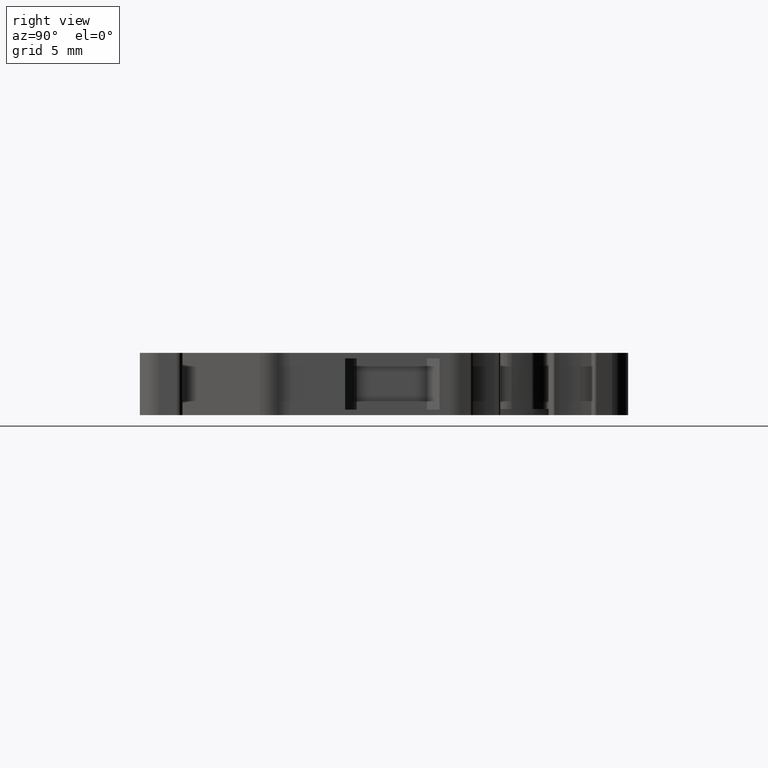
[diagram: clean part render]
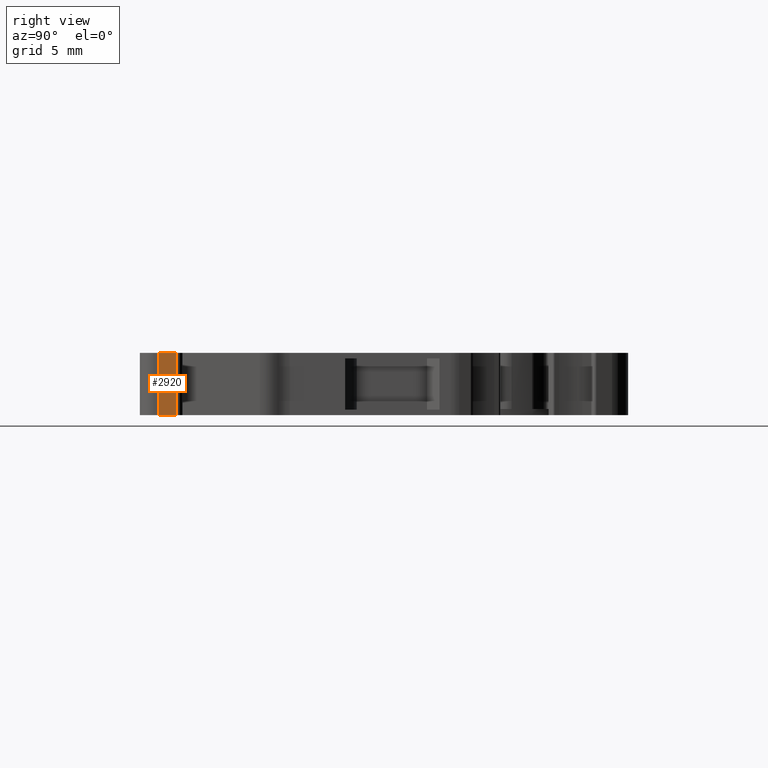
[diagram: same view with one face highlighted and labeled with its STEP entity id]
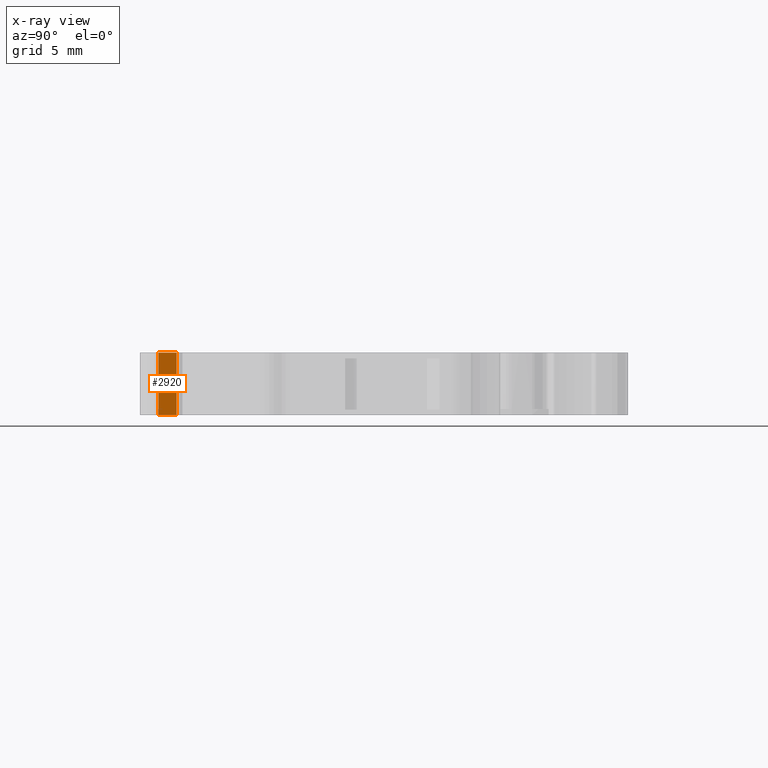
[diagram: x-ray of the same camera — body ghosted, the highlighted face saturated]
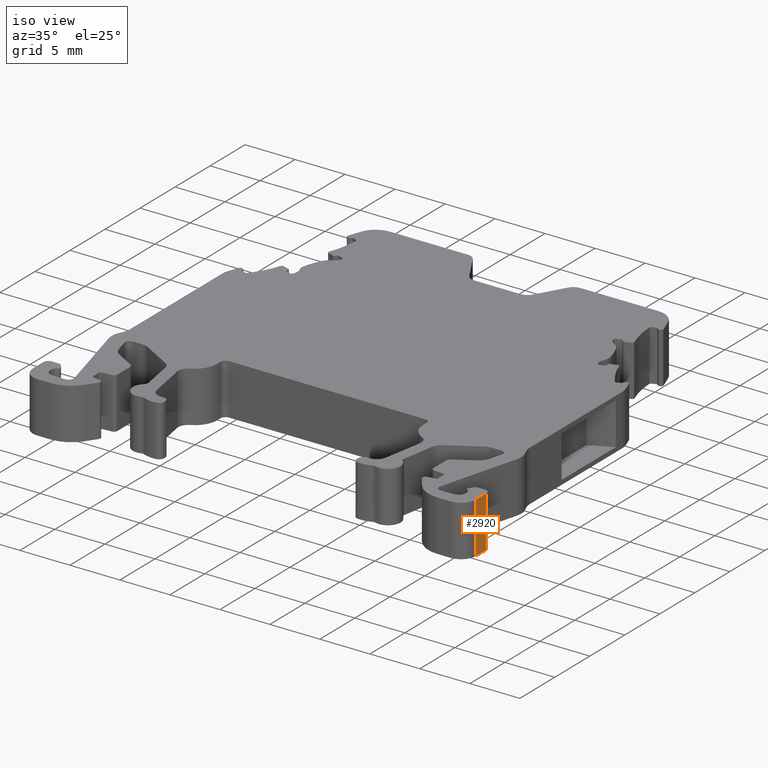
[diagram: same view with one face highlighted and labeled with its STEP entity id]
A machine part, right view. The second image highlights one B-rep face of the part: STEP entity #2920.
The next image is the same camera in x-ray: the body ghosted, the highlighted face saturated — about 0% of this face is hidden behind the body in this view.
A second angle (iso view) of the same face is appended — the face is thin or edge-on in the first view.
In plain terms, the highlighted planar face has unit normal (1, -0, 0).
Its self-contained STEP definition (entity closure, byte-faithful):
#696 = EDGE_LOOP ( 'NONE', ( #5332, #5297, #5335, #5305 ) ) ;
#1159 = VERTEX_POINT ( 'NONE', #5923 ) ;
#1165 = VERTEX_POINT ( 'NONE', #5954 ) ;
#1167 = VERTEX_POINT ( 'NONE', #5951 ) ;
#1192 = VERTEX_POINT ( 'NONE', #5913 ) ;
#2920 = ADVANCED_FACE ( 'NONE', ( #6789 ), #6779, .T. ) ;
#3665 = EDGE_CURVE ( 'NONE', #1159, #1167, #4394, .T. ) ;
#3681 = EDGE_CURVE ( 'NONE', #1159, #1165, #4449, .T. ) ;
#3682 = EDGE_CURVE ( 'NONE', #1192, #1167, #4437, .T. ) ;
#3691 = EDGE_CURVE ( 'NONE', #1192, #1165, #4455, .T. ) ;
#4373 = CARTESIAN_POINT ( 'NONE',  ( 1482.342631016782000, 918.9726166654950200, -48.05000000000000400 ) ) ;
#4387 = DIRECTION ( 'NONE',  ( 0.0000000000000000000, 1.000000000000000000, 0.0000000000000000000 ) ) ;
#4394 = LINE ( 'NONE', #4373, #7228 ) ;
#4427 = DIRECTION ( 'NONE',  ( -0.0000000000000000000, -0.0000000000000000000, 1.000000000000000000 ) ) ;
#4428 = CARTESIAN_POINT ( 'NONE',  ( 1482.342631016781800, 920.4726180537830900, 9.037842237415203400 ) ) ;
#4435 = CARTESIAN_POINT ( 'NONE',  ( 1482.342631016782000, 918.9726166654950200, 9.037842237415203400 ) ) ;
#4437 = LINE ( 'NONE', #4428, #7307 ) ;
#4448 = DIRECTION ( 'NONE',  ( 0.0000000000000000000, 0.0000000000000000000, -1.000000000000000000 ) ) ;
#4449 = LINE ( 'NONE', #4435, #7214 ) ;
#4455 = LINE ( 'NONE', #4485, #7309 ) ;
#4485 = CARTESIAN_POINT ( 'NONE',  ( 1482.342631016782000, 918.9726166654950200, -42.94999999999999600 ) ) ;
#4487 = DIRECTION ( 'NONE',  ( -0.0000000000000000000, -1.000000000000000000, -0.0000000000000000000 ) ) ;
#5297 = ORIENTED_EDGE ( 'NONE', *, *, #3681, .F. ) ;
#5305 = ORIENTED_EDGE ( 'NONE', *, *, #3682, .F. ) ;
#5332 = ORIENTED_EDGE ( 'NONE', *, *, #3691, .T. ) ;
#5335 = ORIENTED_EDGE ( 'NONE', *, *, #3665, .T. ) ;
#5913 = CARTESIAN_POINT ( 'NONE',  ( 1482.342631016782000, 920.4726180537830900, -42.95000000000001700 ) ) ;
#5923 = CARTESIAN_POINT ( 'NONE',  ( 1482.342631016782000, 918.9726166654950200, -48.05000000000000400 ) ) ;
#5951 = CARTESIAN_POINT ( 'NONE',  ( 1482.342631016782000, 920.4726180537830900, -48.05000000000000400 ) ) ;
#5954 = CARTESIAN_POINT ( 'NONE',  ( 1482.342631016782000, 918.9726166654950200, -42.94999999999999600 ) ) ;
#6779 = PLANE ( 'NONE',  #7947 ) ;
#6789 = FACE_OUTER_BOUND ( 'NONE', #696, .T. ) ;
#6791 = DIRECTION ( 'NONE',  ( 0.0000000000000000000, 0.0000000000000000000, -1.000000000000000000 ) ) ;
#6801 = CARTESIAN_POINT ( 'NONE',  ( 1482.342631016782000, 918.9726166654950200, 9.037842237415203400 ) ) ;
#6827 = DIRECTION ( 'NONE',  ( 1.000000000000000000, -0.0000000000000000000, 0.0000000000000000000 ) ) ;
#7214 = VECTOR ( 'NONE', #4427, 1000.000000000000000 ) ;
#7228 = VECTOR ( 'NONE', #4387, 1000.000000000000000 ) ;
#7307 = VECTOR ( 'NONE', #4448, 1000.000000000000000 ) ;
#7309 = VECTOR ( 'NONE', #4487, 1000.000000000000000 ) ;
#7947 = AXIS2_PLACEMENT_3D ( 'NONE', #6801, #6827, #6791 ) ;